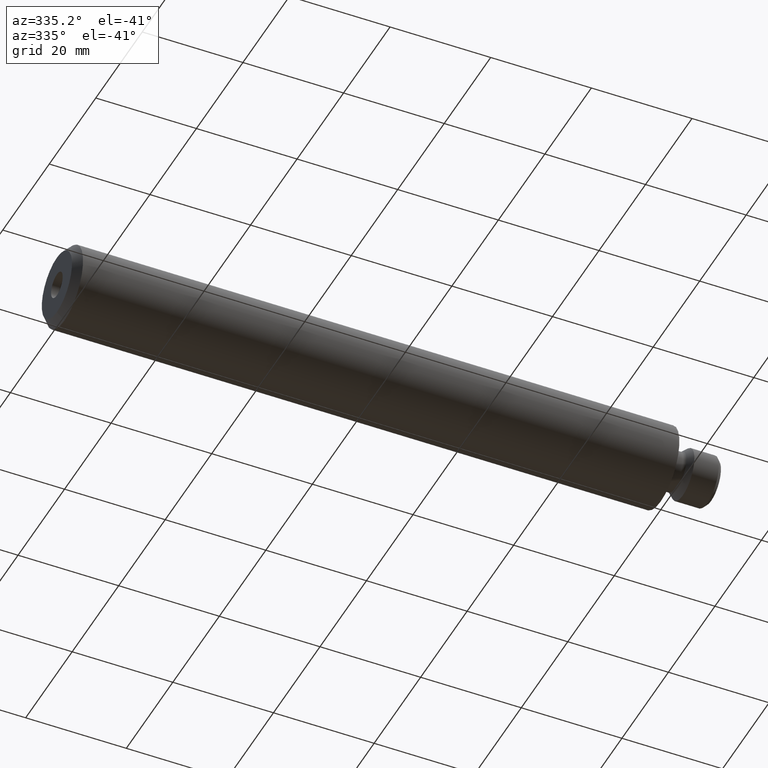
[diagram: clean part render]
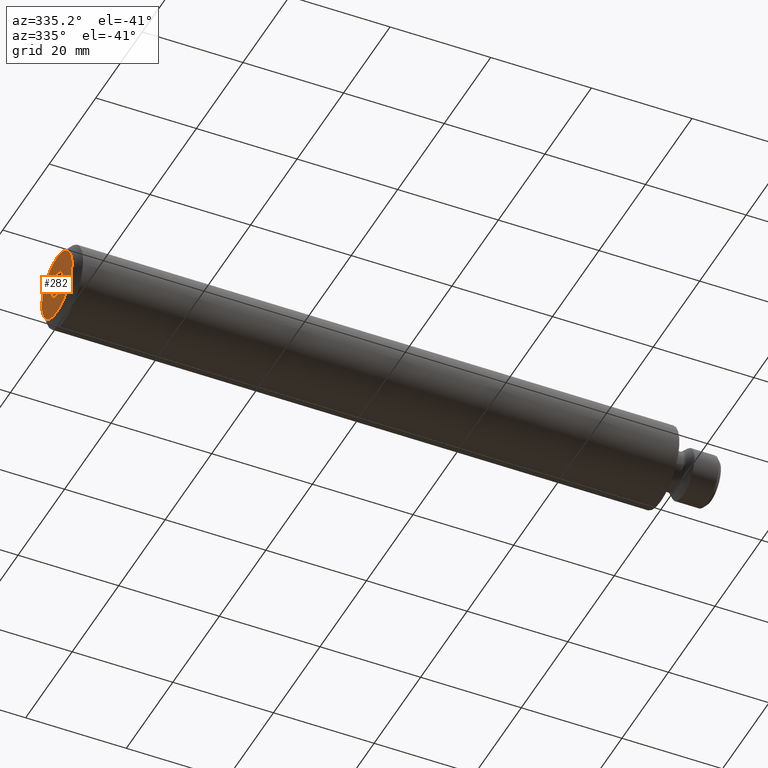
[diagram: same view with one face highlighted and labeled with its STEP entity id]
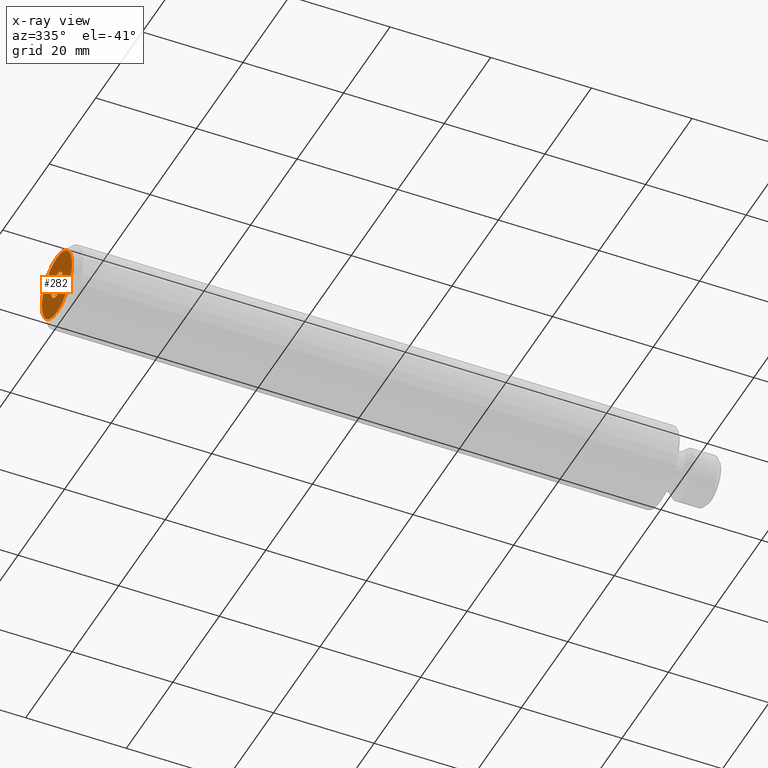
[diagram: x-ray of the same camera — body ghosted, the highlighted face saturated]
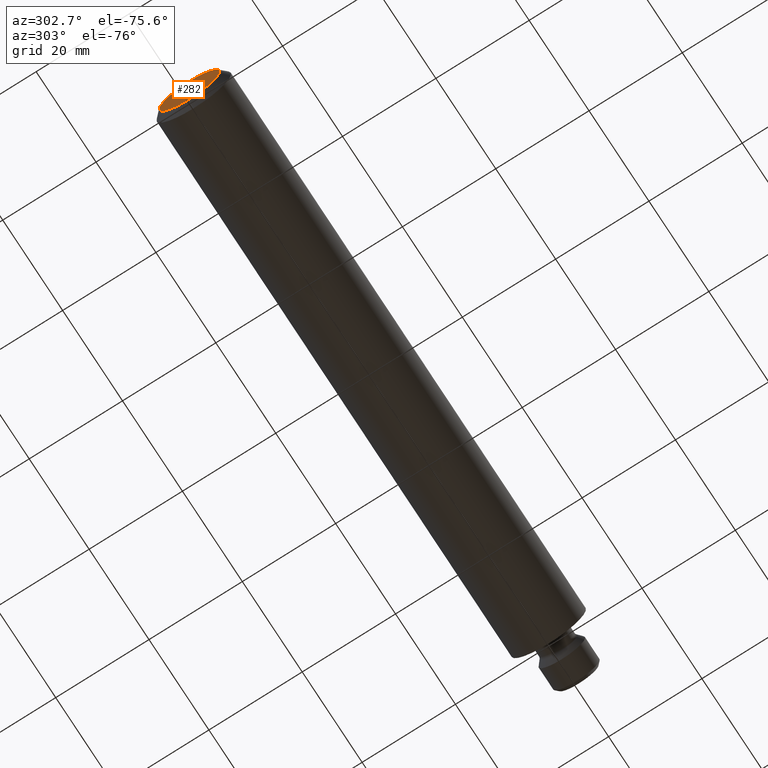
[diagram: same view with one face highlighted and labeled with its STEP entity id]
A machine part, auxiliary view. The second image highlights one B-rep face of the part: STEP entity #282.
The next image is the same camera in x-ray: the body ghosted, the highlighted face saturated — about 0% of this face is hidden behind the body in this view.
A second angle (auxiliary view) of the same face is appended — the face is thin or edge-on in the first view.
In plain terms, the highlighted planar face has unit normal (-1, 0, 0).
Its self-contained STEP definition (entity closure, byte-faithful):
#1 = CARTESIAN_POINT ( 'NONE',  ( -120.0000000000000000, 2.499999999999985800, 0.0000000000000000000 ) ) ;
#11 = DIRECTION ( 'NONE',  ( 0.0000000000000000000, 0.0000000000000000000, -1.000000000000000000 ) ) ;
#26 = CIRCLE ( 'NONE', #290, 2.499999999999985800 ) ;
#34 = EDGE_LOOP ( 'NONE', ( #315 ) ) ;
#57 = FACE_BOUND ( 'NONE', #34, .T. ) ;
#65 = EDGE_CURVE ( 'NONE', #548, #548, #26, .T. ) ;
#68 = FACE_OUTER_BOUND ( 'NONE', #143, .T. ) ;
#74 = DIRECTION ( 'NONE',  ( 0.0000000000000000000, 0.0000000000000000000, -1.000000000000000000 ) ) ;
#94 = CARTESIAN_POINT ( 'NONE',  ( -120.0000000000000000, 0.0000000000000000000, 0.0000000000000000000 ) ) ;
#118 = CARTESIAN_POINT ( 'NONE',  ( -120.0000000000000000, 0.0000000000000000000, 0.0000000000000000000 ) ) ;
#143 = EDGE_LOOP ( 'NONE', ( #479 ) ) ;
#163 = DIRECTION ( 'NONE',  ( 1.000000000000000000, 0.0000000000000000000, 0.0000000000000000000 ) ) ;
#182 = VERTEX_POINT ( 'NONE', #415 ) ;
#282 = ADVANCED_FACE ( 'NONE', ( #57, #68 ), #348, .T. ) ;
#290 = AXIS2_PLACEMENT_3D ( 'NONE', #118, #163, #74 ) ;
#315 = ORIENTED_EDGE ( 'NONE', *, *, #65, .T. ) ;
#342 = DIRECTION ( 'NONE',  ( -1.000000000000000000, 0.0000000000000000000, 0.0000000000000000000 ) ) ;
#348 = PLANE ( 'NONE',  #537 ) ;
#394 = CIRCLE ( 'NONE', #461, 6.499999999999979600 ) ;
#396 = EDGE_CURVE ( 'NONE', #182, #182, #394, .T. ) ;
#415 = CARTESIAN_POINT ( 'NONE',  ( -120.0000000000000000, 0.0000000000000000000, -6.499999999999979600 ) ) ;
#429 = DIRECTION ( 'NONE',  ( 1.000000000000000000, 0.0000000000000000000, 0.0000000000000000000 ) ) ;
#458 = DIRECTION ( 'NONE',  ( 0.0000000000000000000, 0.0000000000000000000, 1.000000000000000000 ) ) ;
#461 = AXIS2_PLACEMENT_3D ( 'NONE', #94, #429, #11 ) ;
#479 = ORIENTED_EDGE ( 'NONE', *, *, #396, .F. ) ;
#489 = CARTESIAN_POINT ( 'NONE',  ( -120.0000000000000000, 0.0000000000000000000, -2.499999999999985800 ) ) ;
#537 = AXIS2_PLACEMENT_3D ( 'NONE', #1, #342, #458 ) ;
#548 = VERTEX_POINT ( 'NONE', #489 ) ;